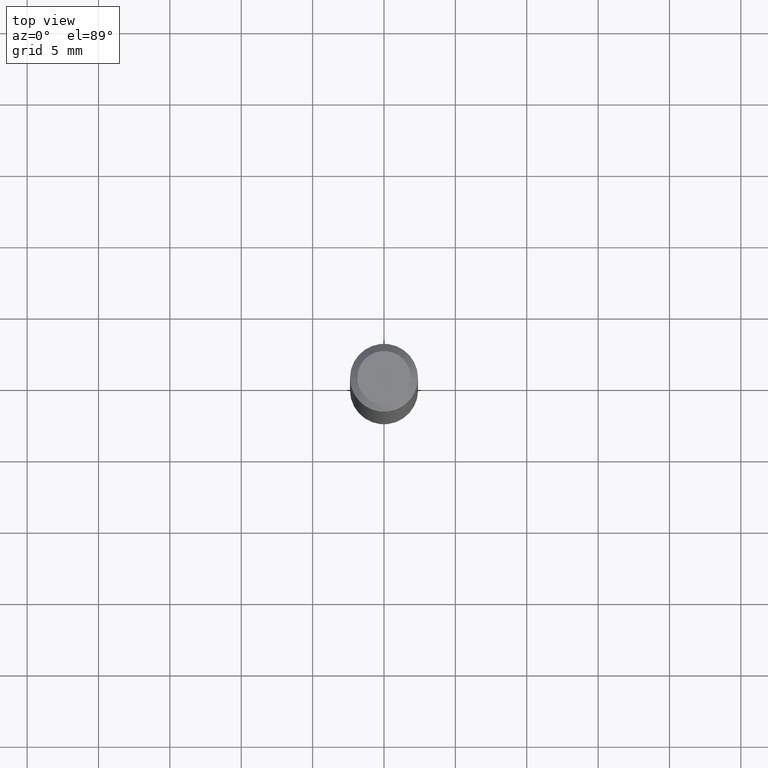
[diagram: clean part render]
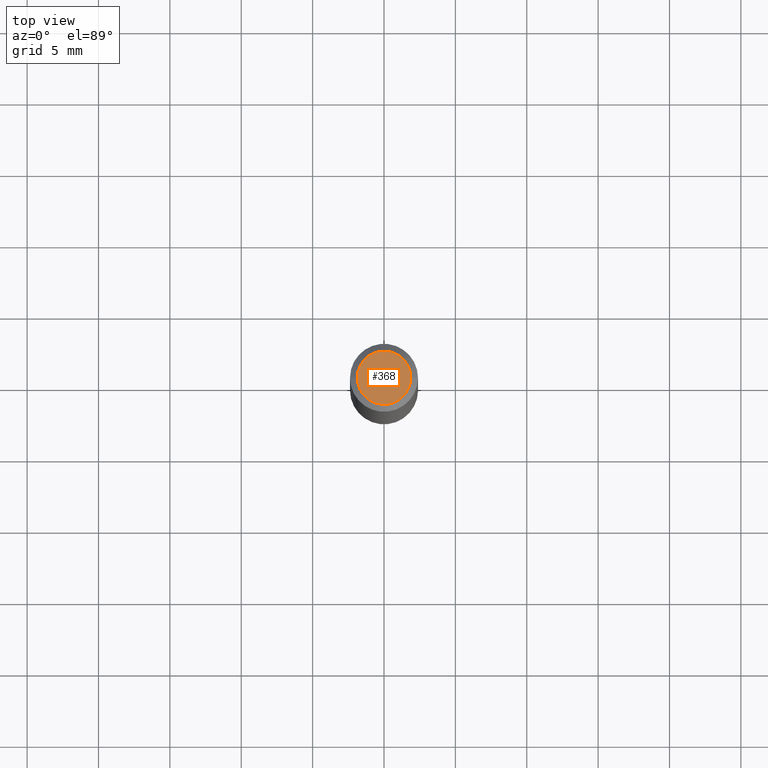
[diagram: same view with one face highlighted and labeled with its STEP entity id]
A machine part, top view. The second image highlights one B-rep face of the part: STEP entity #368.
In plain terms, the highlighted planar face has unit normal (0, -0, -1).
Its self-contained STEP definition (entity closure, byte-faithful):
#11 = CIRCLE ( 'NONE', #40, 0.07374999999999988509 ) ;
#30 = VERTEX_POINT ( 'NONE', #318 ) ;
#33 = CARTESIAN_POINT ( 'NONE',  ( 0.07374999999999988509, -6.094815207017963170E-16, 3.931526600461599449E-30 ) ) ;
#40 = AXIS2_PLACEMENT_3D ( 'NONE', #223, #374, #256 ) ;
#69 = AXIS2_PLACEMENT_3D ( 'NONE', #279, #126, #71 ) ;
#71 = DIRECTION ( 'NONE',  ( -1.000000000000000000, 6.982962677686265922E-15, -4.876176775795935793E-29 ) ) ;
#77 = EDGE_LOOP ( 'NONE', ( #267, #261 ) ) ;
#84 = VERTEX_POINT ( 'NONE', #33 ) ;
#126 = DIRECTION ( 'NONE',  ( 2.438088387897960049E-29, -3.491481338843145188E-15, -1.000000000000000000 ) ) ;
#131 = PLANE ( 'NONE',  #69 ) ;
#144 = CARTESIAN_POINT ( 'NONE',  ( 0.000000000000000000, 0.000000000000000000, 0.000000000000000000 ) ) ;
#152 = DIRECTION ( 'NONE',  ( 1.000000000000000000, -6.982962677686265922E-15, 4.876176775795935232E-29 ) ) ;
#153 = CIRCLE ( 'NONE', #321, 0.07374999999999988509 ) ;
#223 = CARTESIAN_POINT ( 'NONE',  ( 0.000000000000000000, 0.000000000000000000, 0.000000000000000000 ) ) ;
#237 = DIRECTION ( 'NONE',  ( -2.445468806185136597E-29, 3.491481338843145583E-15, 1.000000000000000000 ) ) ;
#238 = EDGE_CURVE ( 'NONE', #84, #30, #153, .T. ) ;
#256 = DIRECTION ( 'NONE',  ( 1.000000000000000000, -6.982962677686265922E-15, 4.876176775795935232E-29 ) ) ;
#261 = ORIENTED_EDGE ( 'NONE', *, *, #238, .T. ) ;
#267 = ORIENTED_EDGE ( 'NONE', *, *, #357, .T. ) ;
#279 = CARTESIAN_POINT ( 'NONE',  ( 5.149934974793613022E-16, 0.07374999999999988509, -2.574967487396815385E-16 ) ) ;
#318 = CARTESIAN_POINT ( 'NONE',  ( -0.07374999999999988509, 5.499083108677923596E-16, -3.723527850031187664E-30 ) ) ;
#321 = AXIS2_PLACEMENT_3D ( 'NONE', #144, #237, #152 ) ;
#322 = FACE_OUTER_BOUND ( 'NONE', #77, .T. ) ;
#357 = EDGE_CURVE ( 'NONE', #30, #84, #11, .T. ) ;
#368 = ADVANCED_FACE ( 'NONE', ( #322 ), #131, .F. ) ;
#374 = DIRECTION ( 'NONE',  ( -2.445468806185136597E-29, 3.491481338843145583E-15, 1.000000000000000000 ) ) ;